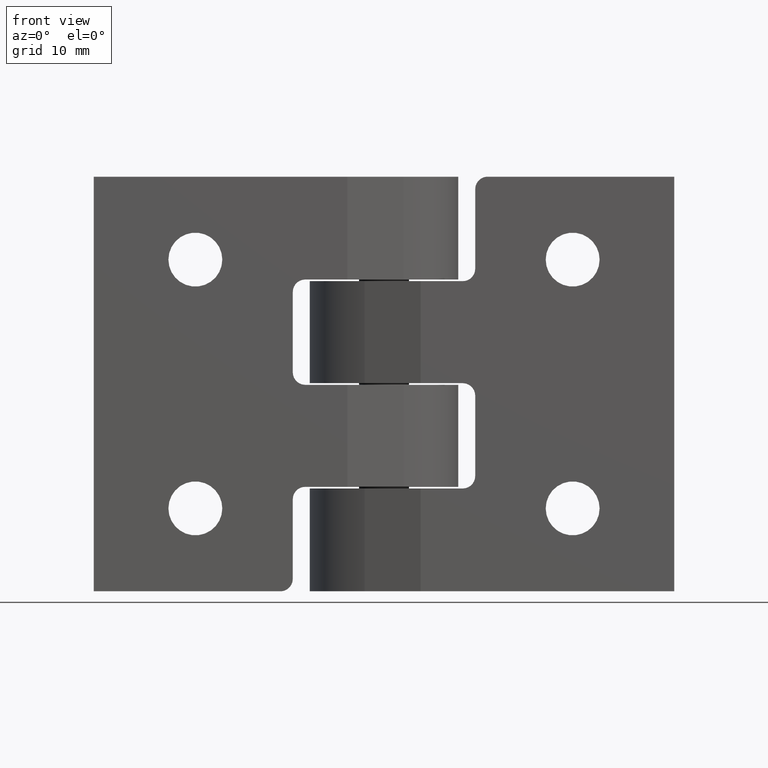
[diagram: clean part render]
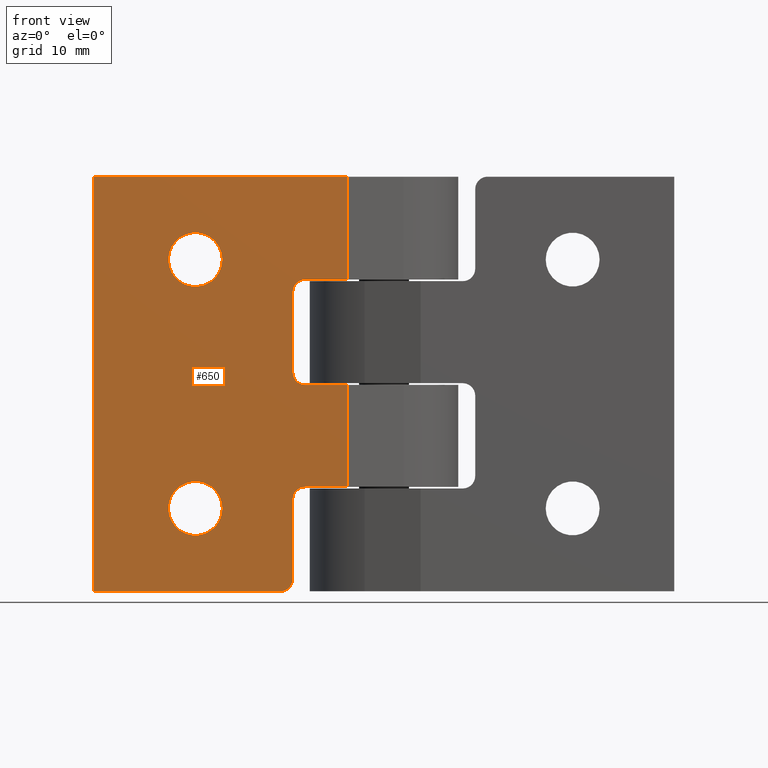
[diagram: same view with one face highlighted and labeled with its STEP entity id]
A machine part, front view. The second image highlights one B-rep face of the part: STEP entity #650.
In plain terms, the highlighted planar face has unit normal (0, -1, 0).
Its self-contained STEP definition (entity closure, byte-faithful):
#42=LINE('',#1072,#90);
#47=LINE('',#1102,#95);
#52=LINE('',#1142,#100);
#55=LINE('',#1155,#103);
#56=LINE('',#1158,#104);
#62=LINE('',#1173,#110);
#65=LINE('',#1184,#113);
#66=LINE('',#1186,#114);
#67=LINE('',#1187,#115);
#68=LINE('',#1188,#116);
#90=VECTOR('',#871,10.);
#95=VECTOR('',#888,10.);
#100=VECTOR('',#907,10.);
#103=VECTOR('',#920,10.);
#104=VECTOR('',#923,10.);
#110=VECTOR('',#937,10.);
#113=VECTOR('',#950,10.);
#114=VECTOR('',#951,10.);
#115=VECTOR('',#952,10.);
#116=VECTOR('',#953,10.);
#153=FACE_BOUND('',#219,.T.);
#154=FACE_BOUND('',#220,.T.);
#178=FACE_OUTER_BOUND('',#218,.T.);
#218=EDGE_LOOP('',(#525,#526,#527,#528,#529,#530,#531,#532,#533,#534,#535,
#536,#537,#538));
#219=EDGE_LOOP('',(#539,#540));
#220=EDGE_LOOP('',(#541,#542));
#243=CIRCLE('',#736,3.25);
#244=CIRCLE('',#737,3.25);
#250=CIRCLE('',#746,3.25);
#251=CIRCLE('',#747,3.25);
#258=CIRCLE('',#758,1.4999999999997);
#260=CIRCLE('',#762,1.49999999999939);
#262=CIRCLE('',#765,1.49999999999939);
#268=CIRCLE('',#775,1.49999999999939);
#283=VERTEX_POINT('',#1033);
#284=VERTEX_POINT('',#1035);
#290=VERTEX_POINT('',#1052);
#291=VERTEX_POINT('',#1054);
#296=VERTEX_POINT('',#1070);
#297=VERTEX_POINT('',#1071);
#301=VERTEX_POINT('',#1081);
#302=VERTEX_POINT('',#1082);
#306=VERTEX_POINT('',#1101);
#311=VERTEX_POINT('',#1133);
#312=VERTEX_POINT('',#1135);
#314=VERTEX_POINT('',#1141);
#319=VERTEX_POINT('',#1153);
#320=VERTEX_POINT('',#1157);
#322=VERTEX_POINT('',#1163);
#325=VERTEX_POINT('',#1171);
#328=VERTEX_POINT('',#1183);
#329=VERTEX_POINT('',#1185);
#347=EDGE_CURVE('',#284,#283,#243,.T.);
#348=EDGE_CURVE('',#283,#284,#244,.T.);
#356=EDGE_CURVE('',#291,#290,#250,.T.);
#357=EDGE_CURVE('',#290,#291,#251,.T.);
#364=EDGE_CURVE('',#296,#297,#42,.T.);
#369=EDGE_CURVE('',#301,#302,#258,.T.);
#374=EDGE_CURVE('',#302,#306,#47,.T.);
#377=EDGE_CURVE('',#306,#296,#260,.T.);
#382=EDGE_CURVE('',#312,#311,#262,.T.);
#385=EDGE_CURVE('',#314,#301,#52,.T.);
#392=EDGE_CURVE('',#311,#319,#55,.T.);
#393=EDGE_CURVE('',#320,#312,#56,.T.);
#396=EDGE_CURVE('',#322,#320,#268,.T.);
#401=EDGE_CURVE('',#297,#325,#62,.T.);
#406=EDGE_CURVE('',#328,#325,#65,.T.);
#407=EDGE_CURVE('',#329,#328,#66,.T.);
#408=EDGE_CURVE('',#322,#329,#67,.T.);
#409=EDGE_CURVE('',#319,#314,#68,.T.);
#525=ORIENTED_EDGE('',*,*,#385,.T.);
#526=ORIENTED_EDGE('',*,*,#369,.T.);
#527=ORIENTED_EDGE('',*,*,#374,.T.);
#528=ORIENTED_EDGE('',*,*,#377,.T.);
#529=ORIENTED_EDGE('',*,*,#364,.T.);
#530=ORIENTED_EDGE('',*,*,#401,.T.);
#531=ORIENTED_EDGE('',*,*,#406,.F.);
#532=ORIENTED_EDGE('',*,*,#407,.F.);
#533=ORIENTED_EDGE('',*,*,#408,.F.);
#534=ORIENTED_EDGE('',*,*,#396,.T.);
#535=ORIENTED_EDGE('',*,*,#393,.T.);
#536=ORIENTED_EDGE('',*,*,#382,.T.);
#537=ORIENTED_EDGE('',*,*,#392,.T.);
#538=ORIENTED_EDGE('',*,*,#409,.T.);
#539=ORIENTED_EDGE('',*,*,#347,.T.);
#540=ORIENTED_EDGE('',*,*,#348,.T.);
#541=ORIENTED_EDGE('',*,*,#356,.T.);
#542=ORIENTED_EDGE('',*,*,#357,.T.);
#621=PLANE('',#782);
#650=ADVANCED_FACE('',(#178,#153,#154),#621,.T.);
#736=AXIS2_PLACEMENT_3D('',#1036,#829,#830);
#737=AXIS2_PLACEMENT_3D('',#1037,#831,#832);
#746=AXIS2_PLACEMENT_3D('',#1055,#851,#852);
#747=AXIS2_PLACEMENT_3D('',#1056,#853,#854);
#758=AXIS2_PLACEMENT_3D('',#1083,#880,#881);
#762=AXIS2_PLACEMENT_3D('',#1107,#893,#894);
#765=AXIS2_PLACEMENT_3D('',#1136,#900,#901);
#775=AXIS2_PLACEMENT_3D('',#1164,#928,#929);
#782=AXIS2_PLACEMENT_3D('',#1182,#948,#949);
#829=DIRECTION('center_axis',(0.,1.,0.));
#830=DIRECTION('ref_axis',(1.,0.,0.));
#831=DIRECTION('center_axis',(0.,1.,0.));
#832=DIRECTION('ref_axis',(1.,0.,0.));
#851=DIRECTION('center_axis',(0.,1.,0.));
#852=DIRECTION('ref_axis',(1.,0.,0.));
#853=DIRECTION('center_axis',(0.,1.,0.));
#854=DIRECTION('ref_axis',(1.,0.,0.));
#871=DIRECTION('',(1.,0.,0.));
#880=DIRECTION('center_axis',(0.,1.,0.));
#881=DIRECTION('ref_axis',(2.01320441798736E-13,0.,-1.));
#888=DIRECTION('',(0.,0.,1.));
#893=DIRECTION('center_axis',(0.,1.,0.));
#894=DIRECTION('ref_axis',(-1.,0.,-4.07081775696056E-13));
#900=DIRECTION('center_axis',(0.,1.,0.));
#901=DIRECTION('ref_axis',(-1.,0.,-4.08562073062224E-13));
#907=DIRECTION('',(-1.,0.,0.));
#920=DIRECTION('',(1.,0.,0.));
#923=DIRECTION('',(0.,0.,1.));
#928=DIRECTION('center_axis',(0.,-1.,0.));
#929=DIRECTION('ref_axis',(-1.,0.,-4.05601478329889E-13));
#937=DIRECTION('',(0.,0.,1.));
#948=DIRECTION('center_axis',(0.,-1.,0.));
#949=DIRECTION('ref_axis',(1.,0.,0.));
#950=DIRECTION('',(1.,0.,0.));
#951=DIRECTION('',(0.,0.,1.));
#952=DIRECTION('',(-1.,0.,0.));
#953=DIRECTION('',(0.,0.,1.));
#1033=CARTESIAN_POINT('',(-26.,-10.5,-15.));
#1035=CARTESIAN_POINT('',(-19.5,-10.5,-15.));
#1036=CARTESIAN_POINT('Origin',(-22.75,-10.5,-15.));
#1037=CARTESIAN_POINT('Origin',(-22.75,-10.5,-15.));
#1052=CARTESIAN_POINT('',(-26.,-10.5,15.));
#1054=CARTESIAN_POINT('',(-19.5,-10.5,15.));
#1055=CARTESIAN_POINT('Origin',(-22.75,-10.5,15.));
#1056=CARTESIAN_POINT('Origin',(-22.75,-10.5,15.));
#1070=CARTESIAN_POINT('',(-9.5,-10.5,12.6));
#1071=CARTESIAN_POINT('',(-4.4135432118542,-10.5,12.6));
#1072=CARTESIAN_POINT('',(-22.25,-10.5,12.6));
#1081=CARTESIAN_POINT('',(-9.5,-10.5,-0.1));
#1082=CARTESIAN_POINT('',(-11.,-10.5,1.4));
#1083=CARTESIAN_POINT('Origin',(-9.5000000000003,-10.5,1.3999999999997));
#1101=CARTESIAN_POINT('',(-11.,-10.5,11.1));
#1102=CARTESIAN_POINT('',(-11.,-10.5,0.7));
#1107=CARTESIAN_POINT('Origin',(-9.50000000000061,-10.5,11.1000000000006));
#1133=CARTESIAN_POINT('',(-9.5,-10.5,-12.4));
#1135=CARTESIAN_POINT('',(-11.,-10.5,-13.9));
#1136=CARTESIAN_POINT('Origin',(-9.50000000000061,-10.5,-13.8999999999994));
#1141=CARTESIAN_POINT('',(-4.4135432118542,-10.5,-0.1));
#1142=CARTESIAN_POINT('',(-12.9995,-10.5,-0.1));
#1153=CARTESIAN_POINT('',(-4.4135432118542,-10.5,-12.4));
#1155=CARTESIAN_POINT('',(-22.25,-10.5,-12.4));
#1157=CARTESIAN_POINT('',(-11.,-10.5,-23.501));
#1158=CARTESIAN_POINT('',(-11.,-10.5,-11.7505));
#1163=CARTESIAN_POINT('',(-12.445236873719,-10.5,-25.));
#1164=CARTESIAN_POINT('Origin',(-12.4999999999994,-10.5,-23.5010000000006));
#1171=CARTESIAN_POINT('',(-4.4135432118542,-10.5,25.));
#1173=CARTESIAN_POINT('',(-4.4135432118542,-10.5,0.));
#1182=CARTESIAN_POINT('Origin',(-35.,-10.5,0.));
#1183=CARTESIAN_POINT('',(-35.,-10.5,25.));
#1184=CARTESIAN_POINT('',(-35.,-10.5,25.));
#1185=CARTESIAN_POINT('',(-35.,-10.5,-25.));
#1186=CARTESIAN_POINT('',(-35.,-10.5,0.));
#1187=CARTESIAN_POINT('',(-35.,-10.5,-25.));
#1188=CARTESIAN_POINT('',(-4.4135432118542,-10.5,0.));